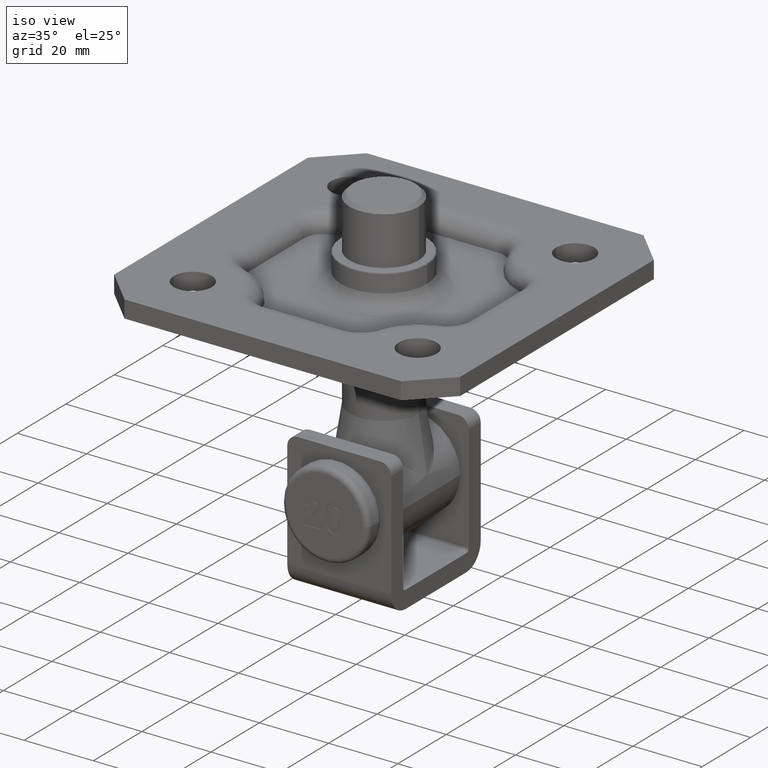
[diagram: clean part render]
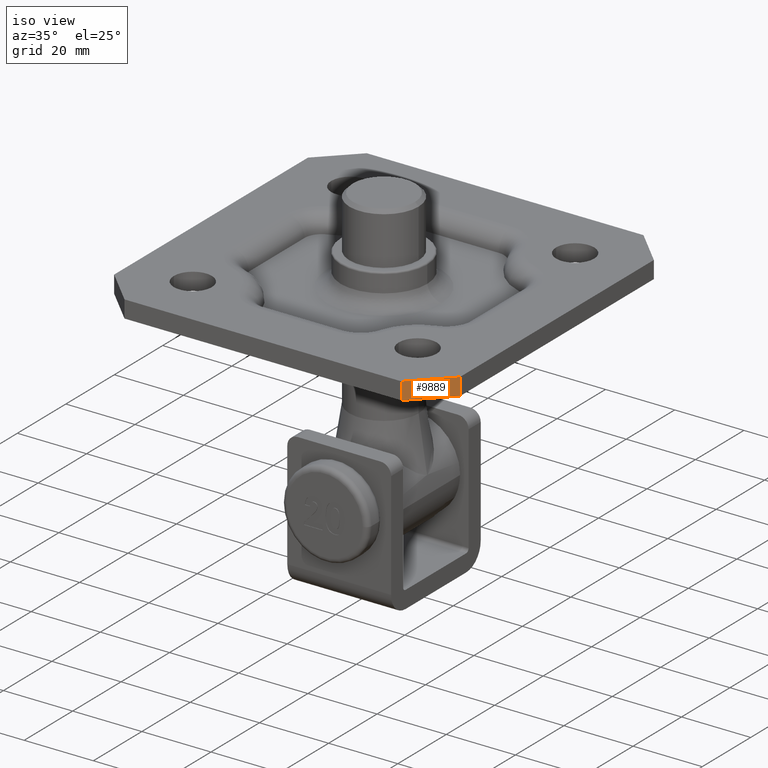
[diagram: same view with one face highlighted and labeled with its STEP entity id]
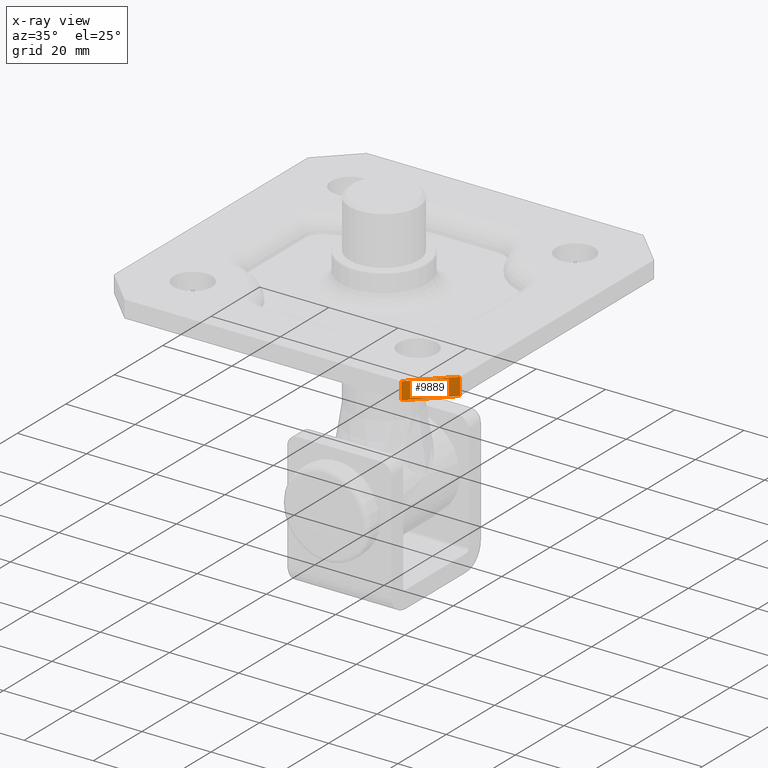
[diagram: x-ray of the same camera — body ghosted, the highlighted face saturated]
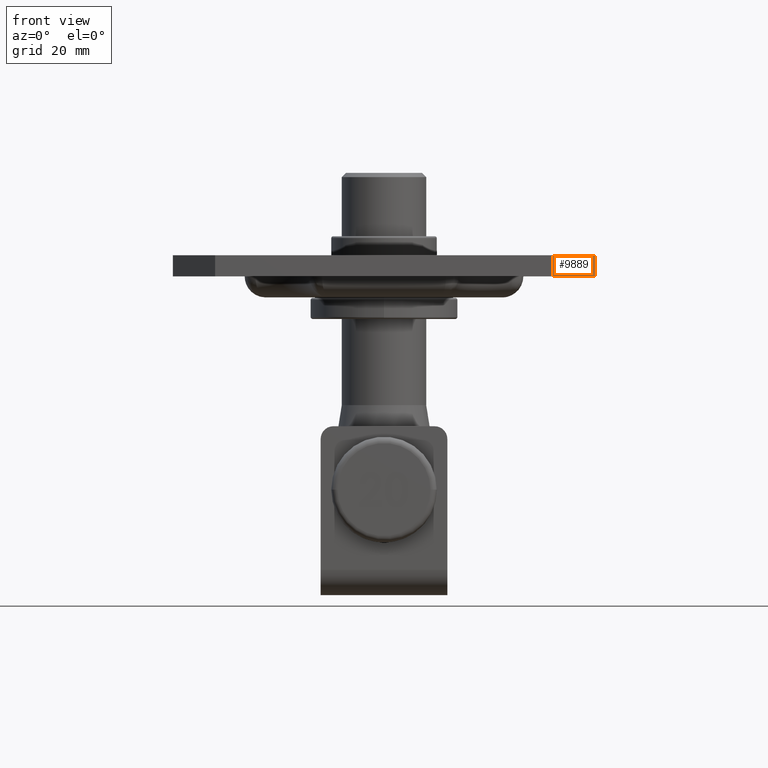
[diagram: same view with one face highlighted and labeled with its STEP entity id]
A machine part, iso view. The second image highlights one B-rep face of the part: STEP entity #9889.
The next image is the same camera in x-ray: the body ghosted, the highlighted face saturated — about 0% of this face is hidden behind the body in this view.
A second angle (front view) of the same face is appended — the face is thin or edge-on in the first view.
In plain terms, the highlighted planar face has unit normal (-0.7071, 0.7071, 0).
Its self-contained STEP definition (entity closure, byte-faithful):
#662 = ORIENTED_EDGE ( 'NONE', *, *, #8554, .F. ) ;
#1524 = VERTEX_POINT ( 'NONE', #17024 ) ;
#1683 = PLANE ( 'NONE',  #22324 ) ;
#2236 = VERTEX_POINT ( 'NONE', #13473 ) ;
#2887 = CARTESIAN_POINT ( 'NONE',  ( -50.00000000000018500, -40.00000000000002100, 2.500000000000002200 ) ) ;
#2936 = CARTESIAN_POINT ( 'NONE',  ( -40.00000000000007800, -50.00000000000017100, 2.500000000000002200 ) ) ;
#3097 = DIRECTION ( 'NONE',  ( 0.0000000000000000000, 0.0000000000000000000, -1.000000000000000000 ) ) ;
#3221 = LINE ( 'NONE', #8850, #3484 ) ;
#3484 = VECTOR ( 'NONE', #7181, 999.9999999999998900 ) ;
#4682 = EDGE_CURVE ( 'NONE', #1524, #19477, #15363, .T. ) ;
#7181 = DIRECTION ( 'NONE',  ( 0.7071067811865464600, -0.7071067811865485700, -0.0000000000000000000 ) ) ;
#7244 = ORIENTED_EDGE ( 'NONE', *, *, #15978, .F. ) ;
#8554 = EDGE_CURVE ( 'NONE', #19477, #2236, #14302, .T. ) ;
#8850 = CARTESIAN_POINT ( 'NONE',  ( -45.00000000000014200, -45.00000000000002100, 2.500000000000002200 ) ) ;
#9482 = VECTOR ( 'NONE', #21066, 999.9999999999998900 ) ;
#9889 = ADVANCED_FACE ( 'NONE', ( #16520 ), #1683, .F. ) ;
#10742 = DIRECTION ( 'NONE',  ( 0.0000000000000000000, 0.0000000000000000000, -1.000000000000000000 ) ) ;
#12094 = EDGE_LOOP ( 'NONE', ( #7244, #13830, #662, #15523 ) ) ;
#12115 = CARTESIAN_POINT ( 'NONE',  ( -40.00000000000007800, -50.00000000000017100, -2.500000000000002200 ) ) ;
#13473 = CARTESIAN_POINT ( 'NONE',  ( -50.00000000000017100, -40.00000000000005000, -2.500000000000002200 ) ) ;
#13775 = CARTESIAN_POINT ( 'NONE',  ( -50.00000000000017100, -40.00000000000005000, 2.500000000000002200 ) ) ;
#13830 = ORIENTED_EDGE ( 'NONE', *, *, #18258, .F. ) ;
#14302 = LINE ( 'NONE', #12115, #9482 ) ;
#14346 = LINE ( 'NONE', #13775, #15731 ) ;
#15363 = LINE ( 'NONE', #2936, #23328 ) ;
#15523 = ORIENTED_EDGE ( 'NONE', *, *, #4682, .F. ) ;
#15731 = VECTOR ( 'NONE', #19672, 1000.000000000000000 ) ;
#15978 = EDGE_CURVE ( 'NONE', #20970, #1524, #3221, .T. ) ;
#16030 = DIRECTION ( 'NONE',  ( 0.7071067811865485700, 0.7071067811865465700, 0.0000000000000000000 ) ) ;
#16520 = FACE_OUTER_BOUND ( 'NONE', #12094, .T. ) ;
#17024 = CARTESIAN_POINT ( 'NONE',  ( -40.00000000000009200, -50.00000000000017100, 2.500000000000002200 ) ) ;
#17911 = CARTESIAN_POINT ( 'NONE',  ( -40.00000000000007800, -50.00000000000017100, 2.500000000000002200 ) ) ;
#18258 = EDGE_CURVE ( 'NONE', #2236, #20970, #14346, .T. ) ;
#19477 = VERTEX_POINT ( 'NONE', #22687 ) ;
#19672 = DIRECTION ( 'NONE',  ( 0.0000000000000000000, 0.0000000000000000000, 1.000000000000000000 ) ) ;
#20970 = VERTEX_POINT ( 'NONE', #2887 ) ;
#21066 = DIRECTION ( 'NONE',  ( -0.7071067811865464600, 0.7071067811865485700, 0.0000000000000000000 ) ) ;
#22324 = AXIS2_PLACEMENT_3D ( 'NONE', #17911, #16030, #10742 ) ;
#22687 = CARTESIAN_POINT ( 'NONE',  ( -40.00000000000007800, -50.00000000000017100, -2.500000000000002200 ) ) ;
#23328 = VECTOR ( 'NONE', #3097, 1000.000000000000000 ) ;